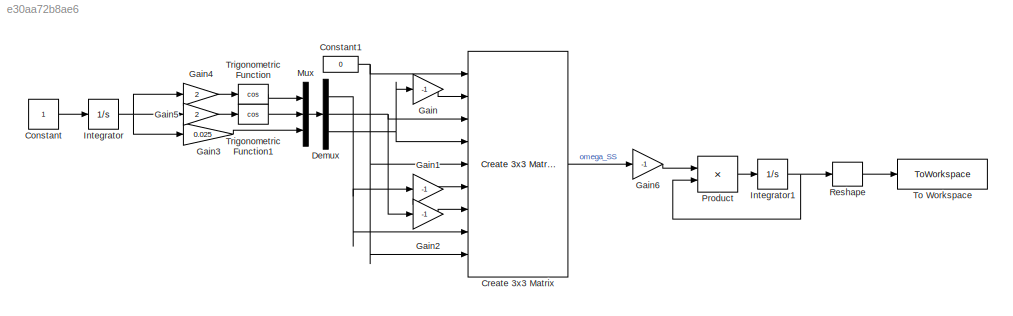
MODEL slx_e30aa72b8ae6
KIND model
CONFIG AbsTol = auto
CONFIG EnableMultiTasking = off
CONFIG FixedStep = 0.1
CONFIG MaxStep = auto
CONFIG MinStep = auto
CONFIG RelTol = 1e-3
CONFIG SampleTimeConstraint = Unconstrained
CONFIG SolverName = ode1
CONFIG StartTime = 0.0
CONFIG StopTime = 10.0
BLOCK [Constant] Constant
BLOCK [Constant] Constant1
  Value = 0
BLOCK [Reference] Create 3x3 Matrix  REF=sharedutil/Create 3x3 Matrix
  Ports = [9, 1]
  SourceBlock = sharedutil/Create 3x3 Matrix
  SourceProductBaseCode = AE,PW,DR,MT,UV,VE
  SourceType = Create 3x3 Matrix
BLOCK [Demux] Demux
  Outputs = 3
  Ports = [1, 3]
BLOCK [Gain] Gain
  Gain = -1
BLOCK [Gain] Gain1
  Gain = -1
BLOCK [Gain] Gain2
  Gain = -1
BLOCK [Gain] Gain3
  Gain = 0.025
BLOCK [Gain] Gain4
  Gain = 2
BLOCK [Gain] Gain5
  Gain = 2
BLOCK [Gain] Gain6
  Gain = -1
BLOCK [Integrator] Integrator
  Ports = [1, 1]
BLOCK [Integrator] Integrator1
  InitialCondition = eye(3)
  Ports = [1, 1]
BLOCK [Mux] Mux
  DisplayOption = bar
  Inputs = 3
  Ports = [3, 1]
BLOCK [Product] Product
  Multiplication = Matrix(*)
  Ports = [2, 1]
BLOCK [Reshape] Reshape
  OutputDimensionality = Column vector (2-D)
  Ports = [1, 1]
BLOCK [ToWorkspace] To Workspace
  FixptAsFi = on
  MaxDataPoints = inf
  Ports = [1]
  SampleTime = -1
  VariableName = O
BLOCK [Trigonometry] Trigonometric Function
  Operator = cos
  Ports = [1, 1]
BLOCK [Trigonometry] Trigonometric Function1
  Operator = cos
  Ports = [1, 1]
NET Constant1:1 -> Create 3x3 Matrix:1, Create 3x3 Matrix:5, Create 3x3 Matrix:9
LINE Constant:1 -> Integrator:1
LINE Create 3x3 Matrix:1 -> Gain6:1
NET Demux:1 -> Create 3x3 Matrix:8, Gain1:1
NET Demux:2 -> Create 3x3 Matrix:3, Gain2:1
NET Demux:3 -> Create 3x3 Matrix:4, Gain:1
LINE Gain1:1 -> Create 3x3 Matrix:6
LINE Gain2:1 -> Create 3x3 Matrix:7
LINE Gain3:1 -> Mux:3
LINE Gain4:1 -> Trigonometric Function:1
LINE Gain5:1 -> Trigonometric Function1:1
LINE Gain6:1 -> Product:1
LINE Gain:1 -> Create 3x3 Matrix:2
NET Integrator1:1 -> Product:2, Reshape:1
NET Integrator:1 -> Gain3:1, Gain4:1, Gain5:1
LINE Mux:1 -> Demux:1
LINE Product:1 -> Integrator1:1
LINE Reshape:1 -> To Workspace:1
LINE Trigonometric Function1:1 -> Mux:2
LINE Trigonometric Function:1 -> Mux:1
note: NET lines group one-source signal fan-out (src -> all destinations, sorted); 1:1 wires keep LINE
